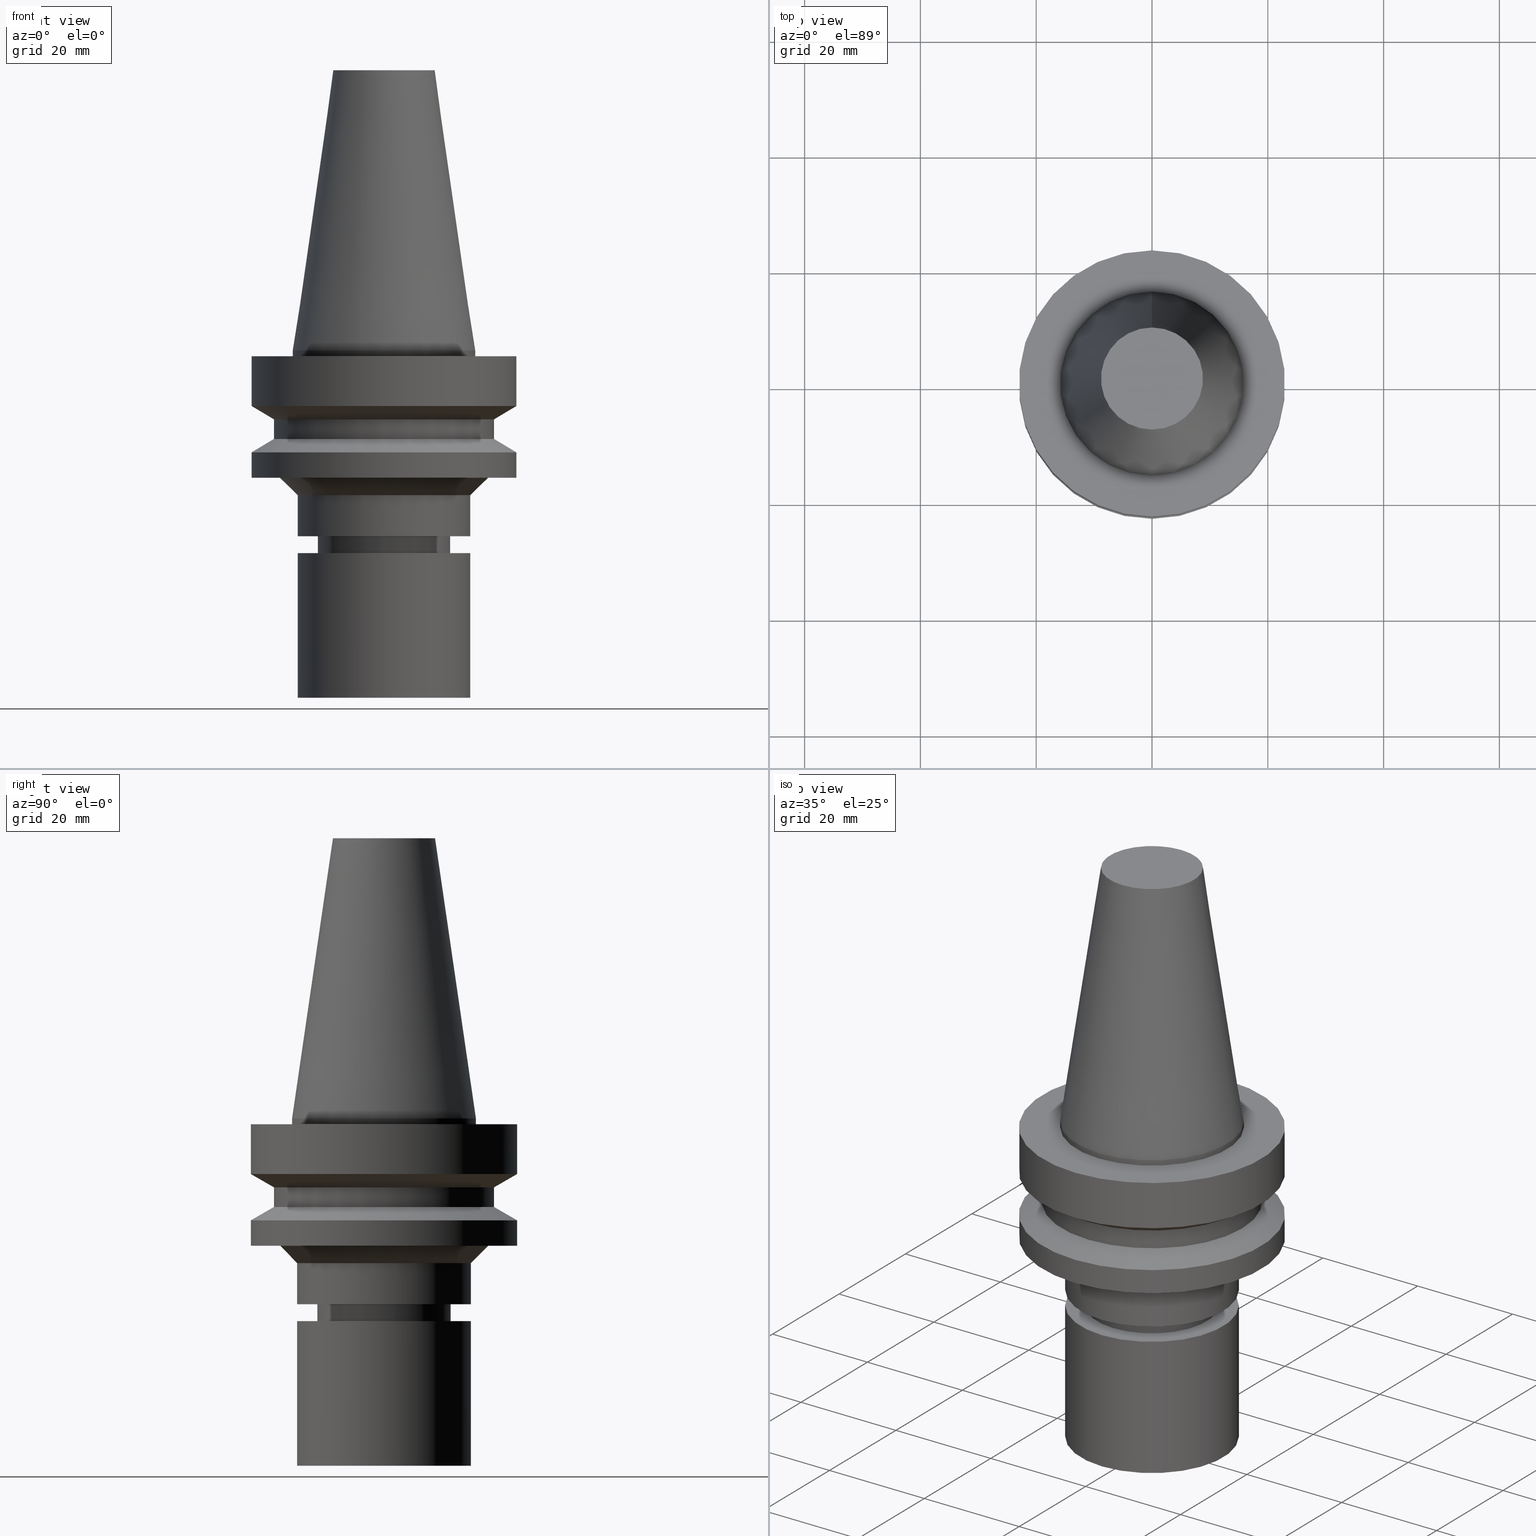
[diagram: canonical four-view strip — front | top / right | iso, engineering-drawing reading convention]
A machine part, canonical four-view strip (front | top / right | iso — engineering-drawing reading convention). The complete STEP part file that produces these views, byte-faithful:
ISO-10303-21;
HEADER;
FILE_DESCRIPTION((''),'1');
FILE_NAME('V:/90_\X2\53D65F9730C730FC30BF\X0\/00_\X2\6DE18DEF30C730FC30BF\X0\/ALL/BBT-BKUS\X2\FF76FF80FF9BFF78FF9E752852A05DE556F3\X0\201801/BBT30-MEGAER/BBT30-MEGAER16-60NL.stp','2018-02-02T07:05:59',(''),(''),'Spatial Interop R21 SP3','Kubotek KeyCreator 2011 V10.0.2 (22737)',' ');
FILE_SCHEMA(('automotive_design'));
ENDSEC;
DATA;
#1=MECHANICAL_DESIGN_GEOMETRIC_PRESENTATION_REPRESENTATION(' ',(#14,#15,#16,#17,#18,#19,#20,#21,#22,#23,#24,#25,#26,#27,#28,#29,#30,#31,#32,#33,#34,#35,#36,#37,#38,#39,#40,#41,#42,#43,#44,#45,#46,#47,#48,#49,#50,#51,#52,#53,#54,#55),#10);
#2=PRODUCT_DEFINITION_CONTEXT('',#56,'design');
#3=APPLICATION_PROTOCOL_DEFINITION('INTERNATIONAL STANDARD','automotive_design',1994,#56);
#4=PRODUCT_CATEGORY_RELATIONSHIP('NONE','NONE',#57,#58);
#5=SHAPE_DEFINITION_REPRESENTATION(#59,#60);
#6=PRODUCT_DEFINITION_CONTEXT('',#61,'design');
#7=APPLICATION_PROTOCOL_DEFINITION('INTERNATIONAL STANDARD','automotive_design',1994,#61);
#8=PRODUCT_CATEGORY_RELATIONSHIP('NONE','NONE',#62,#63);
#9=SHAPE_DEFINITION_REPRESENTATION(#64,#65);
#10= (GEOMETRIC_REPRESENTATION_CONTEXT(3)GLOBAL_UNCERTAINTY_ASSIGNED_CONTEXT((#68))GLOBAL_UNIT_ASSIGNED_CONTEXT((#70,#71,#72))REPRESENTATION_CONTEXT('NONE','WORKSPACE'));
#14=STYLED_ITEM('',(#74),#75);
#15=STYLED_ITEM('',(#76,#77),#78);
#16=STYLED_ITEM('',(#79,#80),#81);
#17=STYLED_ITEM('',(#82),#83);
#18=STYLED_ITEM('',(#84),#85);
#19=STYLED_ITEM('',(#86),#87);
#20=STYLED_ITEM('',(#88),#89);
#21=STYLED_ITEM('',(#90),#91);
#22=STYLED_ITEM('',(#92),#93);
#23=STYLED_ITEM('',(#94,#95),#96);
#24=STYLED_ITEM('',(#97,#98),#99);
#25=STYLED_ITEM('',(#100,#101),#102);
#26=STYLED_ITEM('',(#103),#104);
#27=STYLED_ITEM('',(#105),#106);
#28=STYLED_ITEM('',(#107),#108);
#29=STYLED_ITEM('',(#109,#110),#111);
#30=STYLED_ITEM('',(#112),#113);
#31=STYLED_ITEM('',(#114,#115),#116);
#32=STYLED_ITEM('',(#117,#118),#119);
#33=STYLED_ITEM('',(#120,#121),#122);
#34=STYLED_ITEM('',(#123,#124),#125);
#35=STYLED_ITEM('',(#126,#127),#128);
#36=STYLED_ITEM('',(#129),#130);
#37=STYLED_ITEM('',(#131,#132),#133);
#38=STYLED_ITEM('',(#134,#135),#136);
#39=STYLED_ITEM('',(#137,#138),#139);
#40=STYLED_ITEM('',(#140,#141),#142);
#41=STYLED_ITEM('',(#143),#144);
#42=STYLED_ITEM('',(#145,#146),#147);
#43=STYLED_ITEM('',(#148,#149),#150);
#44=STYLED_ITEM('',(#151,#152),#153);
#45=STYLED_ITEM('',(#154,#155),#156);
#46=STYLED_ITEM('',(#157,#158),#159);
#47=STYLED_ITEM('',(#160),#161);
#48=STYLED_ITEM('',(#162,#163),#164);
#49=STYLED_ITEM('',(#165,#166),#167);
#50=STYLED_ITEM('',(#168),#169);
#51=STYLED_ITEM('',(#170),#171);
#52=STYLED_ITEM('',(#172),#173);
#53=STYLED_ITEM('',(#174),#175);
#54=STYLED_ITEM('',(#176,#177),#178);
#55=STYLED_ITEM('',(#179),#180);
#56=APPLICATION_CONTEXT(' ');
#57=PRODUCT_CATEGORY('part','NONE');
#58=PRODUCT_RELATED_PRODUCT_CATEGORY('detail',' ',(#181));
#59=PRODUCT_DEFINITION_SHAPE('NONE','NONE',#182);
#60=ADVANCED_BREP_SHAPE_REPRESENTATION('Unnamed[1]',(#136,#183),#10);
#61=APPLICATION_CONTEXT(' ');
#62=PRODUCT_CATEGORY('part','NONE');
#63=PRODUCT_RELATED_PRODUCT_CATEGORY('detail',' ',(#184));
#64=PRODUCT_DEFINITION_SHAPE('NONE','NONE',#185);
#65=ADVANCED_BREP_SHAPE_REPRESENTATION('Unnamed[1]',(#96,#186),#10);
#68=UNCERTAINTY_MEASURE_WITH_UNIT(LENGTH_MEASURE(1.0E-006),#70,'','');
#70= (CONVERSION_BASED_UNIT('MILLIMETRE',#189)LENGTH_UNIT()NAMED_UNIT(#192));
#71= (NAMED_UNIT(#194)PLANE_ANGLE_UNIT()SI_UNIT($,.RADIAN.));
#72= (NAMED_UNIT(#194)SOLID_ANGLE_UNIT()SI_UNIT($,.STERADIAN.));
#74=PRESENTATION_STYLE_ASSIGNMENT((#200));
#75=EDGE_CURVE('Unnamed[1]',#201,#201,#202,.T.);
#76=PRESENTATION_STYLE_ASSIGNMENT((#203));
#77=PRESENTATION_STYLE_ASSIGNMENT((#204));
#78=ADVANCED_FACE('Unnamed[1]',(#205),#206,.T.);
#79=PRESENTATION_STYLE_ASSIGNMENT((#207));
#80=PRESENTATION_STYLE_ASSIGNMENT((#208));
#81=ADVANCED_FACE('Unnamed[1]',(#209,#210),#211,.T.);
#82=PRESENTATION_STYLE_ASSIGNMENT((#212));
#83=EDGE_CURVE('Unnamed[1]',#213,#213,#214,.T.);
#84=PRESENTATION_STYLE_ASSIGNMENT((#215));
#85=EDGE_CURVE('Unnamed[1]',#216,#216,#217,.T.);
#86=PRESENTATION_STYLE_ASSIGNMENT((#218));
#87=EDGE_CURVE('Unnamed[1]',#219,#219,#220,.T.);
#88=PRESENTATION_STYLE_ASSIGNMENT((#221));
#89=EDGE_CURVE('Unnamed[1]',#222,#222,#223,.T.);
#90=PRESENTATION_STYLE_ASSIGNMENT((#224));
#91=EDGE_CURVE('Unnamed[1]',#225,#225,#226,.T.);
#92=PRESENTATION_STYLE_ASSIGNMENT((#227));
#93=EDGE_CURVE('Unnamed[1]',#228,#228,#229,.T.);
#94=PRESENTATION_STYLE_ASSIGNMENT((#230));
#95=PRESENTATION_STYLE_ASSIGNMENT((#231));
#96=MANIFOLD_SOLID_BREP('Unnamed[1]',#232);
#97=PRESENTATION_STYLE_ASSIGNMENT((#233));
#98=PRESENTATION_STYLE_ASSIGNMENT((#234));
#99=ADVANCED_FACE('Unnamed[1]',(#235,#236),#237,.T.);
#100=PRESENTATION_STYLE_ASSIGNMENT((#238));
#101=PRESENTATION_STYLE_ASSIGNMENT((#239));
#102=ADVANCED_FACE('Unnamed[1]',(#240),#241,.T.);
#103=PRESENTATION_STYLE_ASSIGNMENT((#242));
#104=EDGE_CURVE('Unnamed[1]',#243,#243,#244,.T.);
#105=PRESENTATION_STYLE_ASSIGNMENT((#245));
#106=EDGE_CURVE('Unnamed[1]',#246,#246,#247,.T.);
#107=PRESENTATION_STYLE_ASSIGNMENT((#248));
#108=EDGE_CURVE('Unnamed[1]',#249,#249,#250,.T.);
#109=PRESENTATION_STYLE_ASSIGNMENT((#251));
#110=PRESENTATION_STYLE_ASSIGNMENT((#252));
#111=ADVANCED_FACE('Unnamed[1]',(#253,#254),#255,.T.);
#112=PRESENTATION_STYLE_ASSIGNMENT((#256));
#113=EDGE_CURVE('Unnamed[1]',#257,#257,#258,.T.);
#114=PRESENTATION_STYLE_ASSIGNMENT((#259));
#115=PRESENTATION_STYLE_ASSIGNMENT((#260));
#116=ADVANCED_FACE('Unnamed[1]',(#261,#262),#263,.T.);
#117=PRESENTATION_STYLE_ASSIGNMENT((#264));
#118=PRESENTATION_STYLE_ASSIGNMENT((#265));
#119=ADVANCED_FACE('Unnamed[1]',(#266),#267,.T.);
#120=PRESENTATION_STYLE_ASSIGNMENT((#268));
#121=PRESENTATION_STYLE_ASSIGNMENT((#269));
#122=ADVANCED_FACE('Unnamed[1]',(#270),#271,.T.);
#123=PRESENTATION_STYLE_ASSIGNMENT((#272));
#124=PRESENTATION_STYLE_ASSIGNMENT((#273));
#125=ADVANCED_FACE('Unnamed[1]',(#274,#275),#276,.T.);
#126=PRESENTATION_STYLE_ASSIGNMENT((#277));
#127=PRESENTATION_STYLE_ASSIGNMENT((#278));
#128=ADVANCED_FACE('Unnamed[1]',(#279,#280),#281,.T.);
#129=PRESENTATION_STYLE_ASSIGNMENT((#282));
#130=EDGE_CURVE('Unnamed[1]',#283,#283,#284,.T.);
#131=PRESENTATION_STYLE_ASSIGNMENT((#285));
#132=PRESENTATION_STYLE_ASSIGNMENT((#286));
#133=ADVANCED_FACE('Unnamed[1]',(#287,#288),#289,.T.);
#134=PRESENTATION_STYLE_ASSIGNMENT((#290));
#135=PRESENTATION_STYLE_ASSIGNMENT((#291));
#136=MANIFOLD_SOLID_BREP('Unnamed[1]',#292);
#137=PRESENTATION_STYLE_ASSIGNMENT((#293));
#138=PRESENTATION_STYLE_ASSIGNMENT((#294));
#139=ADVANCED_FACE('Unnamed[1]',(#295,#296),#297,.T.);
#140=PRESENTATION_STYLE_ASSIGNMENT((#298));
#141=PRESENTATION_STYLE_ASSIGNMENT((#299));
#142=ADVANCED_FACE('Unnamed[1]',(#300,#301),#302,.T.);
#143=PRESENTATION_STYLE_ASSIGNMENT((#303));
#144=EDGE_CURVE('Unnamed[1]',#304,#304,#305,.T.);
#145=PRESENTATION_STYLE_ASSIGNMENT((#306));
#146=PRESENTATION_STYLE_ASSIGNMENT((#307));
#147=ADVANCED_FACE('Unnamed[1]',(#308,#309),#310,.T.);
#148=PRESENTATION_STYLE_ASSIGNMENT((#311));
#149=PRESENTATION_STYLE_ASSIGNMENT((#312));
#150=ADVANCED_FACE('Unnamed[1]',(#313,#314),#315,.T.);
#151=PRESENTATION_STYLE_ASSIGNMENT((#316));
#152=PRESENTATION_STYLE_ASSIGNMENT((#317));
#153=ADVANCED_FACE('Unnamed[1]',(#318,#319),#320,.T.);
#154=PRESENTATION_STYLE_ASSIGNMENT((#321));
#155=PRESENTATION_STYLE_ASSIGNMENT((#322));
#156=ADVANCED_FACE('Unnamed[1]',(#323,#324),#325,.T.);
#157=PRESENTATION_STYLE_ASSIGNMENT((#326));
#158=PRESENTATION_STYLE_ASSIGNMENT((#327));
#159=ADVANCED_FACE('Unnamed[1]',(#328,#329),#330,.T.);
#160=PRESENTATION_STYLE_ASSIGNMENT((#331));
#161=EDGE_CURVE('Unnamed[1]',#332,#332,#333,.T.);
#162=PRESENTATION_STYLE_ASSIGNMENT((#334));
#163=PRESENTATION_STYLE_ASSIGNMENT((#335));
#164=ADVANCED_FACE('Unnamed[1]',(#336,#337),#338,.T.);
#165=PRESENTATION_STYLE_ASSIGNMENT((#339));
#166=PRESENTATION_STYLE_ASSIGNMENT((#340));
#167=ADVANCED_FACE('Unnamed[1]',(#341,#342),#343,.T.);
#168=PRESENTATION_STYLE_ASSIGNMENT((#344));
#169=EDGE_CURVE('Unnamed[1]',#345,#345,#346,.T.);
#170=PRESENTATION_STYLE_ASSIGNMENT((#347));
#171=EDGE_CURVE('Unnamed[1]',#348,#348,#349,.T.);
#172=PRESENTATION_STYLE_ASSIGNMENT((#350));
#173=EDGE_CURVE('Unnamed[1]',#351,#351,#352,.T.);
#174=PRESENTATION_STYLE_ASSIGNMENT((#353));
#175=EDGE_CURVE('Unnamed[1]',#354,#354,#355,.T.);
#176=PRESENTATION_STYLE_ASSIGNMENT((#356));
#177=PRESENTATION_STYLE_ASSIGNMENT((#357));
#178=ADVANCED_FACE('Unnamed[1]',(#358,#359),#360,.T.);
#179=PRESENTATION_STYLE_ASSIGNMENT((#361));
#180=EDGE_CURVE('Unnamed[1]',#362,#362,#363,.T.);
#181=PRODUCT('Unnamed[1]','Unnamed[1]','PART-Unnamed[1]-DESC',(#364));
#182=PRODUCT_DEFINITION('NONE','NONE',#365,#2);
#183=AXIS2_PLACEMENT_3D('',#366,#367,#368);
#184=PRODUCT('Unnamed[1]','Unnamed[1]','PART-Unnamed[1]-DESC',(#369));
#185=PRODUCT_DEFINITION('NONE','NONE',#370,#6);
#186=AXIS2_PLACEMENT_3D('',#371,#372,#373);
#189=LENGTH_MEASURE_WITH_UNIT(LENGTH_MEASURE(1.0),#374);
#192=DIMENSIONAL_EXPONENTS(1.0,0.0,0.0,0.0,0.0,0.0,0.0);
#194=DIMENSIONAL_EXPONENTS(0.0,0.0,0.0,0.0,0.0,0.0,0.0);
#200=CURVE_STYLE('',#375,POSITIVE_LENGTH_MEASURE(1000.0),#376);
#201=VERTEX_POINT('',#377);
#202=CIRCLE('',#378,15.0000000000002);
#203=SURFACE_STYLE_USAGE(.BOTH.,#379);
#204=CURVE_STYLE('',#380,POSITIVE_LENGTH_MEASURE(1000.0),#381);
#205=FACE_OUTER_BOUND('',#382,.T.);
#206=PLANE('',#383);
#207=SURFACE_STYLE_USAGE(.BOTH.,#384);
#208=CURVE_STYLE('',#385,POSITIVE_LENGTH_MEASURE(1000.0),#386);
#209=FACE_BOUND('',#387,.T.);
#210=FACE_BOUND('',#388,.T.);
#211=CONICAL_SURFACE('',#389,12.3457500009933,0.144815870013618);
#212=CURVE_STYLE('',#390,POSITIVE_LENGTH_MEASURE(1000.0),#391);
#213=VERTEX_POINT('',#392);
#214=CIRCLE('',#393,15.0);
#215=CURVE_STYLE('',#394,POSITIVE_LENGTH_MEASURE(1000.0),#395);
#216=VERTEX_POINT('',#396);
#217=CIRCLE('',#397,15.875);
#218=CURVE_STYLE('',#398,POSITIVE_LENGTH_MEASURE(1000.0),#399);
#219=VERTEX_POINT('',#400);
#220=CIRCLE('',#401,19.0);
#221=CURVE_STYLE('',#402,POSITIVE_LENGTH_MEASURE(1000.0),#403);
#222=VERTEX_POINT('',#404);
#223=CIRCLE('',#405,19.0);
#224=CURVE_STYLE('',#406,POSITIVE_LENGTH_MEASURE(1000.0),#407);
#225=VERTEX_POINT('',#408);
#226=CIRCLE('',#409,15.0000000000001);
#227=CURVE_STYLE('',#410,POSITIVE_LENGTH_MEASURE(1000.0),#411);
#228=VERTEX_POINT('',#412);
#229=CIRCLE('',#413,9.89999999999962);
#230=SURFACE_STYLE_USAGE(.BOTH.,#414);
#231=CURVE_STYLE('',#415,POSITIVE_LENGTH_MEASURE(1000.0),#416);
#232=CLOSED_SHELL('',(#78,#119,#139));
#233=SURFACE_STYLE_USAGE(.BOTH.,#417);
#234=CURVE_STYLE('',#418,POSITIVE_LENGTH_MEASURE(1000.0),#419);
#235=FACE_BOUND('',#420,.T.);
#236=FACE_OUTER_BOUND('',#421,.T.);
#237=PLANE('',#422);
#238=SURFACE_STYLE_USAGE(.BOTH.,#423);
#239=CURVE_STYLE('',#424,POSITIVE_LENGTH_MEASURE(1000.0),#425);
#240=FACE_OUTER_BOUND('',#426,.T.);
#241=PLANE('',#427);
#242=CURVE_STYLE('',#428,POSITIVE_LENGTH_MEASURE(1000.0),#429);
#243=VERTEX_POINT('',#430);
#244=CIRCLE('',#431,23.0);
#245=CURVE_STYLE('',#432,POSITIVE_LENGTH_MEASURE(1000.0),#433);
#246=VERTEX_POINT('',#434);
#247=CIRCLE('',#435,23.0);
#248=CURVE_STYLE('',#436,POSITIVE_LENGTH_MEASURE(1000.0),#437);
#249=VERTEX_POINT('',#438);
#250=CIRCLE('',#439,23.0);
#251=SURFACE_STYLE_USAGE(.BOTH.,#440);
#252=CURVE_STYLE('',#441,POSITIVE_LENGTH_MEASURE(1000.0),#442);
#253=FACE_BOUND('',#443,.T.);
#254=FACE_BOUND('',#444,.T.);
#255=CONICAL_SURFACE('',#445,16.5000000000002,0.785398163397443);
#256=CURVE_STYLE('',#446,POSITIVE_LENGTH_MEASURE(1000.0),#447);
#257=VERTEX_POINT('',#448);
#258=CIRCLE('',#449,10.9999999999999);
#259=SURFACE_STYLE_USAGE(.BOTH.,#450);
#260=CURVE_STYLE('',#451,POSITIVE_LENGTH_MEASURE(1000.0),#452);
#261=FACE_BOUND('',#453,.T.);
#262=FACE_BOUND('',#454,.T.);
#263=CYLINDRICAL_SURFACE('',#455,15.0000000000002);
#264=SURFACE_STYLE_USAGE(.BOTH.,#456);
#265=CURVE_STYLE('',#457,POSITIVE_LENGTH_MEASURE(1000.0),#458);
#266=FACE_OUTER_BOUND('',#459,.T.);
#267=PLANE('',#460);
#268=SURFACE_STYLE_USAGE(.BOTH.,#461);
#269=CURVE_STYLE('',#462,POSITIVE_LENGTH_MEASURE(1000.0),#463);
#270=FACE_OUTER_BOUND('',#464,.T.);
#271=PLANE('',#465);
#272=SURFACE_STYLE_USAGE(.BOTH.,#466);
#273=CURVE_STYLE('',#467,POSITIVE_LENGTH_MEASURE(1000.0),#468);
#274=FACE_OUTER_BOUND('',#469,.T.);
#275=FACE_BOUND('',#470,.T.);
#276=PLANE('',#471);
#277=SURFACE_STYLE_USAGE(.BOTH.,#472);
#278=CURVE_STYLE('',#473,POSITIVE_LENGTH_MEASURE(1000.0),#474);
#279=FACE_BOUND('',#475,.T.);
#280=FACE_BOUND('',#476,.T.);
#281=CONICAL_SURFACE('',#477,21.0,1.04719755058881);
#282=CURVE_STYLE('',#478,POSITIVE_LENGTH_MEASURE(1000.0),#479);
#283=VERTEX_POINT('',#480);
#284=CIRCLE('',#481,15.875);
#285=SURFACE_STYLE_USAGE(.BOTH.,#482);
#286=CURVE_STYLE('',#483,POSITIVE_LENGTH_MEASURE(1000.0),#484);
#287=FACE_BOUND('',#485,.T.);
#288=FACE_BOUND('',#486,.T.);
#289=CYLINDRICAL_SURFACE('',#487,15.875);
#290=SURFACE_STYLE_USAGE(.BOTH.,#488);
#291=CURVE_STYLE('',#489,POSITIVE_LENGTH_MEASURE(1000.0),#490);
#292=CLOSED_SHELL('',(#122,#81,#133,#125,#167,#128,#147,#156,#150,#99,#111,#116,#164,#153,#178,#159,#142,#102));
#293=SURFACE_STYLE_USAGE(.BOTH.,#491);
#294=CURVE_STYLE('',#492,POSITIVE_LENGTH_MEASURE(1000.0),#493);
#295=FACE_BOUND('',#494,.T.);
#296=FACE_BOUND('',#495,.T.);
#297=CYLINDRICAL_SURFACE('',#496,15.0);
#298=SURFACE_STYLE_USAGE(.BOTH.,#497);
#299=CURVE_STYLE('',#498,POSITIVE_LENGTH_MEASURE(1000.0),#499);
#300=FACE_BOUND('',#500,.T.);
#301=FACE_BOUND('',#501,.T.);
#302=CONICAL_SURFACE('',#502,10.4499999999999,0.523598775598229);
#303=CURVE_STYLE('',#503,POSITIVE_LENGTH_MEASURE(1000.0),#504);
#304=VERTEX_POINT('',#505);
#305=CIRCLE('',#506,18.0000000000002);
#306=SURFACE_STYLE_USAGE(.BOTH.,#507);
#307=CURVE_STYLE('',#508,POSITIVE_LENGTH_MEASURE(1000.0),#509);
#308=FACE_BOUND('',#510,.T.);
#309=FACE_BOUND('',#511,.T.);
#310=CYLINDRICAL_SURFACE('',#512,19.0);
#311=SURFACE_STYLE_USAGE(.BOTH.,#513);
#312=CURVE_STYLE('',#514,POSITIVE_LENGTH_MEASURE(1000.0),#515);
#313=FACE_BOUND('',#516,.T.);
#314=FACE_BOUND('',#517,.T.);
#315=CYLINDRICAL_SURFACE('',#518,23.0);
#316=SURFACE_STYLE_USAGE(.BOTH.,#519);
#317=CURVE_STYLE('',#520,POSITIVE_LENGTH_MEASURE(1000.0),#521);
#318=FACE_BOUND('',#522,.T.);
#319=FACE_BOUND('',#523,.T.);
#320=CYLINDRICAL_SURFACE('',#524,11.4999999999964);
#321=SURFACE_STYLE_USAGE(.BOTH.,#525);
#322=CURVE_STYLE('',#526,POSITIVE_LENGTH_MEASURE(1000.0),#527);
#323=FACE_BOUND('',#528,.T.);
#324=FACE_BOUND('',#529,.T.);
#325=CONICAL_SURFACE('',#530,21.0,1.04719755058882);
#326=SURFACE_STYLE_USAGE(.BOTH.,#531);
#327=CURVE_STYLE('',#532,POSITIVE_LENGTH_MEASURE(1000.0),#533);
#328=FACE_BOUND('',#534,.T.);
#329=FACE_BOUND('',#535,.T.);
#330=CYLINDRICAL_SURFACE('',#536,11.0000000000001);
#331=CURVE_STYLE('',#537,POSITIVE_LENGTH_MEASURE(1000.0),#538);
#332=VERTEX_POINT('',#539);
#333=CIRCLE('',#540,23.0);
#334=SURFACE_STYLE_USAGE(.BOTH.,#541);
#335=CURVE_STYLE('',#542,POSITIVE_LENGTH_MEASURE(1000.0),#543);
#336=FACE_BOUND('',#544,.T.);
#337=FACE_OUTER_BOUND('',#545,.T.);
#338=PLANE('',#546);
#339=SURFACE_STYLE_USAGE(.BOTH.,#547);
#340=CURVE_STYLE('',#548,POSITIVE_LENGTH_MEASURE(1000.0),#549);
#341=FACE_BOUND('',#550,.T.);
#342=FACE_BOUND('',#551,.T.);
#343=CYLINDRICAL_SURFACE('',#552,23.0);
#344=CURVE_STYLE('',#553,POSITIVE_LENGTH_MEASURE(1000.0),#554);
#345=VERTEX_POINT('',#555);
#346=CIRCLE('',#556,8.81650000198669);
#347=CURVE_STYLE('',#557,POSITIVE_LENGTH_MEASURE(1000.0),#558);
#348=VERTEX_POINT('',#559);
#349=CIRCLE('',#560,15.0000000000002);
#350=CURVE_STYLE('',#561,POSITIVE_LENGTH_MEASURE(1000.0),#562);
#351=VERTEX_POINT('',#563);
#352=CIRCLE('',#564,11.4999999999907);
#353=CURVE_STYLE('',#565,POSITIVE_LENGTH_MEASURE(1000.0),#566);
#354=VERTEX_POINT('',#567);
#355=CIRCLE('',#568,11.5000000000021);
#356=SURFACE_STYLE_USAGE(.BOTH.,#569);
#357=CURVE_STYLE('',#570,POSITIVE_LENGTH_MEASURE(1000.0),#571);
#358=FACE_BOUND('',#572,.T.);
#359=FACE_BOUND('',#573,.T.);
#360=CONICAL_SURFACE('',#574,11.250000000001,1.04719755118907);
#361=CURVE_STYLE('',#575,POSITIVE_LENGTH_MEASURE(1000.0),#576);
#362=VERTEX_POINT('',#577);
#363=CIRCLE('',#578,11.0000000000003);
#364=PRODUCT_CONTEXT('',#56,'mechanical');
#365=PRODUCT_DEFINITION_FORMATION_WITH_SPECIFIED_SOURCE(' ','NONE',#181,.NOT_KNOWN.);
#366=CARTESIAN_POINT('',(0.0,0.0,0.0));
#367=DIRECTION('',(0.0,0.0,1.0));
#368=DIRECTION('',(1.0,0.0,0.0));
#369=PRODUCT_CONTEXT('',#61,'mechanical');
#370=PRODUCT_DEFINITION_FORMATION_WITH_SPECIFIED_SOURCE(' ','NONE',#184,.NOT_KNOWN.);
#371=CARTESIAN_POINT('',(0.0,0.0,0.0));
#372=DIRECTION('',(0.0,0.0,1.0));
#373=DIRECTION('',(1.0,0.0,0.0));
#374= (NAMED_UNIT(#192)LENGTH_UNIT()SI_UNIT(.MILLI.,.METRE.));
#375=DRAUGHTING_PRE_DEFINED_CURVE_FONT('continuous');
#376=COLOUR_RGB('',0.0,1.0,0.0);
#377=CARTESIAN_POINT('',(1.96555811263146E-015,15.0000000000002,-32.0999999999994));
#378=AXIS2_PLACEMENT_3D('',#580,#581,#582);
#379=SURFACE_SIDE_STYLE('',(#583));
#380=DRAUGHTING_PRE_DEFINED_CURVE_FONT('continuous');
#381=COLOUR_RGB('',0.0,1.0,0.0);
#382=EDGE_LOOP('',(#584));
#383=AXIS2_PLACEMENT_3D('',#585,#586,#587);
#384=SURFACE_SIDE_STYLE('',(#588));
#385=DRAUGHTING_PRE_DEFINED_CURVE_FONT('continuous');
#386=COLOUR_RGB('',0.0,1.0,0.0);
#387=EDGE_LOOP('',(#589));
#388=EDGE_LOOP('',(#590));
#389=AXIS2_PLACEMENT_3D('',#591,#592,#593);
#390=DRAUGHTING_PRE_DEFINED_CURVE_FONT('continuous');
#391=COLOUR_RGB('',0.0,1.0,0.0);
#392=CARTESIAN_POINT('',(3.67394039744206E-015,15.0,-60.0));
#393=AXIS2_PLACEMENT_3D('',#594,#595,#596);
#394=DRAUGHTING_PRE_DEFINED_CURVE_FONT('continuous');
#395=COLOUR_RGB('',0.0,1.0,0.0);
#396=CARTESIAN_POINT('',(6.12323399573675E-017,15.875,-0.999999999999998));
#397=AXIS2_PLACEMENT_3D('',#597,#598,#599);
#398=DRAUGHTING_PRE_DEFINED_CURVE_FONT('continuous');
#399=COLOUR_RGB('',0.0,1.0,0.0);
#400=CARTESIAN_POINT('',(9.36279151221199E-016,19.0,-15.29059892));
#401=AXIS2_PLACEMENT_3D('',#600,#601,#602);
#402=DRAUGHTING_PRE_DEFINED_CURVE_FONT('continuous');
#403=COLOUR_RGB('',0.0,1.0,0.0);
#404=CARTESIAN_POINT('',(7.29240495619202E-016,19.0,-11.90940108));
#405=AXIS2_PLACEMENT_3D('',#603,#604,#605);
#406=DRAUGHTING_PRE_DEFINED_CURVE_FONT('continuous');
#407=COLOUR_RGB('',0.0,1.0,0.0);
#408=CARTESIAN_POINT('',(2.14313189850787E-015,15.0000000000001,-35.0));
#409=AXIS2_PLACEMENT_3D('',#606,#607,#608);
#410=DRAUGHTING_PRE_DEFINED_CURVE_FONT('continuous');
#411=COLOUR_RGB('',0.0,1.0,0.0);
#412=CARTESIAN_POINT('',(3.13509580581717E-015,9.89999999999963,-51.1999999999991));
#413=AXIS2_PLACEMENT_3D('',#609,#610,#611);
#414=SURFACE_SIDE_STYLE('',(#612));
#415=DRAUGHTING_PRE_DEFINED_CURVE_FONT('continuous');
#416=COLOUR_RGB('',0.0,1.0,0.0);
#417=SURFACE_SIDE_STYLE('',(#613));
#418=DRAUGHTING_PRE_DEFINED_CURVE_FONT('continuous');
#419=COLOUR_RGB('',0.0,1.0,0.0);
#420=EDGE_LOOP('',(#614));
#421=EDGE_LOOP('',(#615));
#422=AXIS2_PLACEMENT_3D('',#616,#617,#618);
#423=SURFACE_SIDE_STYLE('',(#619));
#424=DRAUGHTING_PRE_DEFINED_CURVE_FONT('continuous');
#425=COLOUR_RGB('',0.0,1.0,0.0);
#426=EDGE_LOOP('',(#620));
#427=AXIS2_PLACEMENT_3D('',#621,#622,#623);
#428=DRAUGHTING_PRE_DEFINED_CURVE_FONT('continuous');
#429=COLOUR_RGB('',0.0,1.0,0.0);
#430=CARTESIAN_POINT('',(6.12323399573674E-017,23.0,-0.999999999999997));
#431=AXIS2_PLACEMENT_3D('',#624,#625,#626);
#432=DRAUGHTING_PRE_DEFINED_CURVE_FONT('continuous');
#433=COLOUR_RGB('',0.0,1.0,0.0);
#434=CARTESIAN_POINT('',(5.87830463590729E-016,23.0,-9.59999999999999));
#435=AXIS2_PLACEMENT_3D('',#627,#628,#629);
#436=DRAUGHTING_PRE_DEFINED_CURVE_FONT('continuous');
#437=COLOUR_RGB('',0.0,1.0,0.0);
#438=CARTESIAN_POINT('',(1.07768918324967E-015,23.0,-17.6));
#439=AXIS2_PLACEMENT_3D('',#630,#631,#632);
#440=SURFACE_SIDE_STYLE('',(#633));
#441=DRAUGHTING_PRE_DEFINED_CURVE_FONT('continuous');
#442=COLOUR_RGB('',0.0,1.0,0.0);
#443=EDGE_LOOP('',(#634));
#444=EDGE_LOOP('',(#635));
#445=AXIS2_PLACEMENT_3D('',#636,#637,#638);
#446=DRAUGHTING_PRE_DEFINED_CURVE_FONT('continuous');
#447=COLOUR_RGB('',0.0,1.0,0.0);
#448=CARTESIAN_POINT('',(2.33907538637135E-015,10.9999999999999,-38.1999999999984));
#449=AXIS2_PLACEMENT_3D('',#639,#640,#641);
#450=SURFACE_SIDE_STYLE('',(#642));
#451=DRAUGHTING_PRE_DEFINED_CURVE_FONT('continuous');
#452=COLOUR_RGB('',0.0,1.0,0.0);
#453=EDGE_LOOP('',(#643));
#454=EDGE_LOOP('',(#644));
#455=AXIS2_PLACEMENT_3D('',#645,#646,#647);
#456=SURFACE_SIDE_STYLE('',(#648));
#457=DRAUGHTING_PRE_DEFINED_CURVE_FONT('continuous');
#458=COLOUR_RGB('',0.0,1.0,0.0);
#459=EDGE_LOOP('',(#649));
#460=AXIS2_PLACEMENT_3D('',#650,#651,#652);
#461=SURFACE_SIDE_STYLE('',(#653));
#462=DRAUGHTING_PRE_DEFINED_CURVE_FONT('continuous');
#463=COLOUR_RGB('',0.0,1.0,0.0);
#464=EDGE_LOOP('',(#654));
#465=AXIS2_PLACEMENT_3D('',#655,#656,#657);
#466=SURFACE_SIDE_STYLE('',(#658));
#467=DRAUGHTING_PRE_DEFINED_CURVE_FONT('continuous');
#468=COLOUR_RGB('',0.0,1.0,0.0);
#469=EDGE_LOOP('',(#659));
#470=EDGE_LOOP('',(#660));
#471=AXIS2_PLACEMENT_3D('',#661,#662,#663);
#472=SURFACE_SIDE_STYLE('',(#664));
#473=DRAUGHTING_PRE_DEFINED_CURVE_FONT('continuous');
#474=COLOUR_RGB('',0.0,1.0,0.0);
#475=EDGE_LOOP('',(#665));
#476=EDGE_LOOP('',(#666));
#477=AXIS2_PLACEMENT_3D('',#667,#668,#669);
#478=DRAUGHTING_PRE_DEFINED_CURVE_FONT('continuous');
#479=COLOUR_RGB('',0.0,1.0,0.0);
#480=CARTESIAN_POINT('',(-1.95674482349743E-031,15.875,1.94412679364642E-015));
#481=AXIS2_PLACEMENT_3D('',#670,#671,#672);
#482=SURFACE_SIDE_STYLE('',(#673));
#483=DRAUGHTING_PRE_DEFINED_CURVE_FONT('continuous');
#484=COLOUR_RGB('',0.0,1.0,0.0);
#485=EDGE_LOOP('',(#674));
#486=EDGE_LOOP('',(#675));
#487=AXIS2_PLACEMENT_3D('',#676,#677,#678);
#488=SURFACE_SIDE_STYLE('',(#679));
#489=DRAUGHTING_PRE_DEFINED_CURVE_FONT('continuous');
#490=COLOUR_RGB('',0.0,1.0,0.0);
#491=SURFACE_SIDE_STYLE('',(#680));
#492=DRAUGHTING_PRE_DEFINED_CURVE_FONT('continuous');
#493=COLOUR_RGB('',0.0,1.0,0.0);
#494=EDGE_LOOP('',(#681));
#495=EDGE_LOOP('',(#682));
#496=AXIS2_PLACEMENT_3D('',#683,#684,#685);
#497=SURFACE_SIDE_STYLE('',(#686));
#498=DRAUGHTING_PRE_DEFINED_CURVE_FONT('continuous');
#499=COLOUR_RGB('',0.0,1.0,0.0);
#500=EDGE_LOOP('',(#687));
#501=EDGE_LOOP('',(#688));
#502=AXIS2_PLACEMENT_3D('',#689,#690,#691);
#503=DRAUGHTING_PRE_DEFINED_CURVE_FONT('continuous');
#504=COLOUR_RGB('',0.0,1.0,0.0);
#505=CARTESIAN_POINT('',(1.34711147906209E-015,18.0000000000002,-22.0));
#506=AXIS2_PLACEMENT_3D('',#692,#693,#694);
#507=SURFACE_SIDE_STYLE('',(#695));
#508=DRAUGHTING_PRE_DEFINED_CURVE_FONT('continuous');
#509=COLOUR_RGB('',0.0,1.0,0.0);
#510=EDGE_LOOP('',(#696));
#511=EDGE_LOOP('',(#697));
#512=AXIS2_PLACEMENT_3D('',#698,#699,#700);
#513=SURFACE_SIDE_STYLE('',(#701));
#514=DRAUGHTING_PRE_DEFINED_CURVE_FONT('continuous');
#515=COLOUR_RGB('',0.0,1.0,0.0);
#516=EDGE_LOOP('',(#702));
#517=EDGE_LOOP('',(#703));
#518=AXIS2_PLACEMENT_3D('',#704,#705,#706);
#519=SURFACE_SIDE_STYLE('',(#707));
#520=DRAUGHTING_PRE_DEFINED_CURVE_FONT('continuous');
#521=COLOUR_RGB('',0.0,1.0,0.0);
#522=EDGE_LOOP('',(#708));
#523=EDGE_LOOP('',(#709));
#524=AXIS2_PLACEMENT_3D('',#710,#711,#712);
#525=SURFACE_SIDE_STYLE('',(#713));
#526=DRAUGHTING_PRE_DEFINED_CURVE_FONT('continuous');
#527=COLOUR_RGB('',0.0,1.0,0.0);
#528=EDGE_LOOP('',(#714));
#529=EDGE_LOOP('',(#715));
#530=AXIS2_PLACEMENT_3D('',#716,#717,#718);
#531=SURFACE_SIDE_STYLE('',(#719));
#532=DRAUGHTING_PRE_DEFINED_CURVE_FONT('continuous');
#533=COLOUR_RGB('',0.0,1.0,0.0);
#534=EDGE_LOOP('',(#720));
#535=EDGE_LOOP('',(#721));
#536=AXIS2_PLACEMENT_3D('',#722,#723,#724);
#537=DRAUGHTING_PRE_DEFINED_CURVE_FONT('continuous');
#538=COLOUR_RGB('',0.0,1.0,0.0);
#539=CARTESIAN_POINT('',(1.34711147906209E-015,23.0,-22.0));
#540=AXIS2_PLACEMENT_3D('',#725,#726,#727);
#541=SURFACE_SIDE_STYLE('',(#728));
#542=DRAUGHTING_PRE_DEFINED_CURVE_FONT('continuous');
#543=COLOUR_RGB('',0.0,1.0,0.0);
#544=EDGE_LOOP('',(#729));
#545=EDGE_LOOP('',(#730));
#546=AXIS2_PLACEMENT_3D('',#731,#732,#733);
#547=SURFACE_SIDE_STYLE('',(#734));
#548=DRAUGHTING_PRE_DEFINED_CURVE_FONT('continuous');
#549=COLOUR_RGB('',0.0,1.0,0.0);
#550=EDGE_LOOP('',(#735));
#551=EDGE_LOOP('',(#736));
#552=AXIS2_PLACEMENT_3D('',#737,#738,#739);
#553=DRAUGHTING_PRE_DEFINED_CURVE_FONT('continuous');
#554=COLOUR_RGB('',0.0,1.0,0.0);
#555=CARTESIAN_POINT('',(-2.96364525393659E-015,8.81650000198669,48.4));
#556=AXIS2_PLACEMENT_3D('',#740,#741,#742);
#557=DRAUGHTING_PRE_DEFINED_CURVE_FONT('continuous');
#558=COLOUR_RGB('',0.0,1.0,0.0);
#559=CARTESIAN_POINT('',(1.53080849893419E-015,15.0000000000002,-25.0));
#560=AXIS2_PLACEMENT_3D('',#743,#744,#745);
#561=DRAUGHTING_PRE_DEFINED_CURVE_FONT('continuous');
#562=COLOUR_RGB('',0.0,1.0,0.0);
#563=CARTESIAN_POINT('',(1.96555811263151E-015,11.4999999999907,-32.1000000000001));
#564=AXIS2_PLACEMENT_3D('',#746,#747,#748);
#565=DRAUGHTING_PRE_DEFINED_CURVE_FONT('continuous');
#566=COLOUR_RGB('',0.0,1.0,0.0);
#567=CARTESIAN_POINT('',(2.32139913239222E-015,11.5000000000021,-37.9113248653974));
#568=AXIS2_PLACEMENT_3D('',#749,#750,#751);
#569=SURFACE_SIDE_STYLE('',(#752));
#570=DRAUGHTING_PRE_DEFINED_CURVE_FONT('continuous');
#571=COLOUR_RGB('',0.0,1.0,0.0);
#572=EDGE_LOOP('',(#753));
#573=EDGE_LOOP('',(#754));
#574=AXIS2_PLACEMENT_3D('',#755,#756,#757);
#575=DRAUGHTING_PRE_DEFINED_CURVE_FONT('continuous');
#576=COLOUR_RGB('',0.0,1.0,0.0);
#577=CARTESIAN_POINT('',(3.01843252955734E-015,11.0000000000003,-49.294744111672));
#578=AXIS2_PLACEMENT_3D('',#758,#759,#760);
#580=CARTESIAN_POINT('',(1.96555811263146E-015,3.93111622526292E-015,-32.0999999999994));
#581=DIRECTION('',(6.12323399573677E-017,1.22464679914735E-016,-1.0));
#582=DIRECTION('',(-1.23259516440783E-032,1.0,1.22464679914735E-016));
#583=SURFACE_STYLE_FILL_AREA(#761);
#584=ORIENTED_EDGE('',*,*,#83,.T.);
#585=CARTESIAN_POINT('',(3.67394039744206E-015,7.50000000000001,-60.0));
#586=DIRECTION('',(6.12323399573677E-017,1.22464679914735E-016,-1.0));
#587=DIRECTION('',(-1.23259516440783E-032,1.0,1.22464679914735E-016));
#588=SURFACE_STYLE_FILL_AREA(#762);
#589=ORIENTED_EDGE('',*,*,#130,.F.);
#590=ORIENTED_EDGE('',*,*,#169,.T.);
#591=CARTESIAN_POINT('',(-1.4818226269683E-015,-2.96364525393659E-015,24.2));
#592=DIRECTION('',(6.12323399573677E-017,1.22464679914735E-016,-1.0));
#593=DIRECTION('',(-1.23259516440783E-032,1.0,1.22464679914735E-016));
#594=CARTESIAN_POINT('',(3.67394039744206E-015,7.34788079488412E-015,-60.0));
#595=DIRECTION('',(6.12323399573677E-017,1.22464679914735E-016,-1.0));
#596=DIRECTION('',(-1.23259516440783E-032,1.0,1.22464679914735E-016));
#597=CARTESIAN_POINT('',(6.12323399573677E-017,1.22464679914735E-016,-1.0));
#598=DIRECTION('',(6.12323399573677E-017,1.22464679914735E-016,-1.0));
#599=DIRECTION('',(-1.23259516440783E-032,1.0,1.22464679914735E-016));
#600=CARTESIAN_POINT('',(9.36279151221199E-016,1.8725583024424E-015,-15.29059892));
#601=DIRECTION('',(6.12323399573677E-017,1.22464679914735E-016,-1.0));
#602=DIRECTION('',(-1.23259516440783E-032,1.0,1.22464679914735E-016));
#603=CARTESIAN_POINT('',(7.29240495619202E-016,1.4584809912384E-015,-11.90940108));
#604=DIRECTION('',(6.12323399573677E-017,1.22464679914735E-016,-1.0));
#605=DIRECTION('',(-1.23259516440783E-032,1.0,1.22464679914735E-016));
#606=CARTESIAN_POINT('',(2.14313189850787E-015,4.28626379701574E-015,-35.0));
#607=DIRECTION('',(6.12323399573677E-017,1.22464679914735E-016,-1.0));
#608=DIRECTION('',(-1.23259516440783E-032,1.0,1.22464679914735E-016));
#609=CARTESIAN_POINT('',(3.13509580581717E-015,6.27019161163434E-015,-51.1999999999991));
#610=DIRECTION('',(6.12323399573677E-017,1.22464679914735E-016,-1.0));
#611=DIRECTION('',(-1.23259516440783E-032,1.0,1.22464679914735E-016));
#612=SURFACE_STYLE_FILL_AREA(#763);
#613=SURFACE_STYLE_FILL_AREA(#764);
#614=ORIENTED_EDGE('',*,*,#144,.F.);
#615=ORIENTED_EDGE('',*,*,#161,.T.);
#616=CARTESIAN_POINT('',(1.34711147906209E-015,20.5000000000001,-22.0));
#617=DIRECTION('',(6.12323399573677E-017,1.22464679914735E-016,-1.0));
#618=DIRECTION('',(-1.23259516440783E-032,1.0,1.22464679914735E-016));
#619=SURFACE_STYLE_FILL_AREA(#765);
#620=ORIENTED_EDGE('',*,*,#93,.T.);
#621=CARTESIAN_POINT('',(3.13509580581719E-015,4.94999999999982,-51.1999999999995));
#622=DIRECTION('',(6.12323399573677E-017,8.12248173474849E-014,-1.0));
#623=DIRECTION('',(-4.97841278152706E-030,1.0,8.12248173474849E-014));
#624=CARTESIAN_POINT('',(6.12323399573677E-017,1.22464679914735E-016,-1.0));
#625=DIRECTION('',(6.12323399573677E-017,1.22464679914735E-016,-1.0));
#626=DIRECTION('',(-1.23259516440783E-032,1.0,1.22464679914735E-016));
#627=CARTESIAN_POINT('',(5.87830463590729E-016,1.17566092718146E-015,-9.59999999999999));
#628=DIRECTION('',(6.12323399573677E-017,1.22464679914735E-016,-1.0));
#629=DIRECTION('',(-1.23259516440783E-032,1.0,1.22464679914735E-016));
#630=CARTESIAN_POINT('',(1.07768918324967E-015,2.15537836649934E-015,-17.6));
#631=DIRECTION('',(6.12323399573677E-017,1.22464679914735E-016,-1.0));
#632=DIRECTION('',(-1.23259516440783E-032,1.0,1.22464679914735E-016));
#633=SURFACE_STYLE_FILL_AREA(#766);
#634=ORIENTED_EDGE('',*,*,#171,.F.);
#635=ORIENTED_EDGE('',*,*,#144,.T.);
#636=CARTESIAN_POINT('',(1.43895998899814E-015,2.87791997799628E-015,-23.5));
#637=DIRECTION('',(-6.12323399573677E-017,-1.22464679914735E-016,1.0));
#638=DIRECTION('',(-1.23259516440783E-032,1.0,1.22464679914735E-016));
#639=CARTESIAN_POINT('',(2.33907538637135E-015,4.6781507727427E-015,-38.1999999999984));
#640=DIRECTION('',(6.12323399573676E-017,1.22464679914735E-016,-1.0));
#641=DIRECTION('',(-1.23259516440783E-032,1.0,1.22464679914735E-016));
#642=SURFACE_STYLE_FILL_AREA(#767);
#643=ORIENTED_EDGE('',*,*,#75,.F.);
#644=ORIENTED_EDGE('',*,*,#171,.T.);
#645=CARTESIAN_POINT('',(1.74818330578283E-015,3.49636661156565E-015,-28.5499999999997));
#646=DIRECTION('',(6.12323399573677E-017,1.22464679914735E-016,-1.0));
#647=DIRECTION('',(-1.23259516440783E-032,1.0,1.22464679914735E-016));
#648=SURFACE_STYLE_FILL_AREA(#768);
#649=ORIENTED_EDGE('',*,*,#91,.F.);
#650=CARTESIAN_POINT('',(2.14313189850787E-015,7.50000000000004,-35.0));
#651=DIRECTION('',(-6.12323399573677E-017,-1.22464679914735E-016,1.0));
#652=DIRECTION('',(1.23259516440783E-032,-1.0,-1.22464679914735E-016));
#653=SURFACE_STYLE_FILL_AREA(#769);
#654=ORIENTED_EDGE('',*,*,#169,.F.);
#655=CARTESIAN_POINT('',(-2.96364525393659E-015,4.40825000099334,48.4));
#656=DIRECTION('',(-6.12323399573677E-017,-1.22464679914735E-016,1.0));
#657=DIRECTION('',(1.23259516440783E-032,-1.0,-1.22464679914735E-016));
#658=SURFACE_STYLE_FILL_AREA(#770);
#659=ORIENTED_EDGE('',*,*,#104,.F.);
#660=ORIENTED_EDGE('',*,*,#85,.T.);
#661=CARTESIAN_POINT('',(6.12323399573674E-017,19.4375,-0.999999999999998));
#662=DIRECTION('',(-6.12323399573677E-017,-1.22464679914735E-016,1.0));
#663=DIRECTION('',(1.23259516440783E-032,-1.0,-1.22464679914735E-016));
#664=SURFACE_STYLE_FILL_AREA(#771);
#665=ORIENTED_EDGE('',*,*,#89,.F.);
#666=ORIENTED_EDGE('',*,*,#106,.T.);
#667=CARTESIAN_POINT('',(6.58535479604966E-016,1.31707095920993E-015,-10.75470054));
#668=DIRECTION('',(-6.12323399573677E-017,-1.22464679914735E-016,1.0));
#669=DIRECTION('',(-1.23259516440783E-032,1.0,1.22464679914735E-016));
#670=CARTESIAN_POINT('',(0.0,0.0,0.0));
#671=DIRECTION('',(6.12323399573677E-017,1.22464679914735E-016,-1.0));
#672=DIRECTION('',(-1.23259516440783E-032,1.0,1.22464679914735E-016));
#673=SURFACE_STYLE_FILL_AREA(#772);
#674=ORIENTED_EDGE('',*,*,#85,.F.);
#675=ORIENTED_EDGE('',*,*,#130,.T.);
#676=CARTESIAN_POINT('',(3.06161699786838E-017,6.12323399573676E-017,-0.5));
#677=DIRECTION('',(6.12323399573677E-017,1.22464679914735E-016,-1.0));
#678=DIRECTION('',(-1.23259516440783E-032,1.0,1.22464679914735E-016));
#679=SURFACE_STYLE_FILL_AREA(#773);
#680=SURFACE_STYLE_FILL_AREA(#774);
#681=ORIENTED_EDGE('',*,*,#83,.F.);
#682=ORIENTED_EDGE('',*,*,#91,.T.);
#683=CARTESIAN_POINT('',(2.90853614797497E-015,5.81707229594993E-015,-47.5));
#684=DIRECTION('',(6.12323399573677E-017,1.22464679914735E-016,-1.0));
#685=DIRECTION('',(-1.23259516440783E-032,1.0,1.22464679914735E-016));
#686=SURFACE_STYLE_FILL_AREA(#775);
#687=ORIENTED_EDGE('',*,*,#93,.F.);
#688=ORIENTED_EDGE('',*,*,#180,.T.);
#689=CARTESIAN_POINT('',(3.07676416768726E-015,6.15352833537451E-015,-50.2473720558355));
#690=DIRECTION('',(-6.12323399573677E-017,-1.22464679914735E-016,1.0));
#691=DIRECTION('',(-1.23259516440783E-032,1.0,1.22464679914735E-016));
#692=CARTESIAN_POINT('',(1.34711147906209E-015,2.69422295812418E-015,-22.0));
#693=DIRECTION('',(6.12323399573677E-017,1.22464679914735E-016,-1.0));
#694=DIRECTION('',(-1.23259516440783E-032,1.0,1.22464679914735E-016));
#695=SURFACE_STYLE_FILL_AREA(#776);
#696=ORIENTED_EDGE('',*,*,#87,.F.);
#697=ORIENTED_EDGE('',*,*,#89,.T.);
#698=CARTESIAN_POINT('',(8.32759823420201E-016,1.6655196468404E-015,-13.6));
#699=DIRECTION('',(6.12323399573677E-017,1.22464679914735E-016,-1.0));
#700=DIRECTION('',(-1.23259516440783E-032,1.0,1.22464679914735E-016));
#701=SURFACE_STYLE_FILL_AREA(#777);
#702=ORIENTED_EDGE('',*,*,#161,.F.);
#703=ORIENTED_EDGE('',*,*,#108,.T.);
#704=CARTESIAN_POINT('',(1.21240033115588E-015,2.42480066231176E-015,-19.8));
#705=DIRECTION('',(6.12323399573677E-017,1.22464679914735E-016,-1.0));
#706=DIRECTION('',(-1.23259516440783E-032,1.0,1.22464679914735E-016));
#707=SURFACE_STYLE_FILL_AREA(#778);
#708=ORIENTED_EDGE('',*,*,#175,.F.);
#709=ORIENTED_EDGE('',*,*,#173,.T.);
#710=CARTESIAN_POINT('',(2.14347862251186E-015,4.28695724502372E-015,-35.0056624326987));
#711=DIRECTION('',(6.12323399573676E-017,1.22464679914735E-016,-1.0));
#712=DIRECTION('',(-1.23259516440783E-032,1.0,1.22464679914735E-016));
#713=SURFACE_STYLE_FILL_AREA(#779);
#714=ORIENTED_EDGE('',*,*,#108,.F.);
#715=ORIENTED_EDGE('',*,*,#87,.T.);
#716=CARTESIAN_POINT('',(1.00698416723543E-015,2.01396833447087E-015,-16.44529946));
#717=DIRECTION('',(6.12323399573677E-017,1.22464679914735E-016,-1.0));
#718=DIRECTION('',(-1.23259516440783E-032,1.0,1.22464679914735E-016));
#719=SURFACE_STYLE_FILL_AREA(#780);
#720=ORIENTED_EDGE('',*,*,#180,.F.);
#721=ORIENTED_EDGE('',*,*,#113,.T.);
#722=CARTESIAN_POINT('',(2.67875395796435E-015,5.35750791592869E-015,-43.7473720558352));
#723=DIRECTION('',(6.12323399573677E-017,1.22464679914735E-016,-1.0));
#724=DIRECTION('',(-1.23259516440783E-032,1.0,1.22464679914735E-016));
#725=CARTESIAN_POINT('',(1.34711147906209E-015,2.69422295812418E-015,-22.0));
#726=DIRECTION('',(6.12323399573677E-017,1.22464679914735E-016,-1.0));
#727=DIRECTION('',(-1.23259516440783E-032,1.0,1.22464679914735E-016));
#728=SURFACE_STYLE_FILL_AREA(#781);
#729=ORIENTED_EDGE('',*,*,#173,.F.);
#730=ORIENTED_EDGE('',*,*,#75,.T.);
#731=CARTESIAN_POINT('',(1.96555811263148E-015,13.2499999999955,-32.0999999999997));
#732=DIRECTION('',(6.12323399573677E-017,2.051647969987E-013,-1.0));
#733=DIRECTION('',(-1.25675477498395E-029,1.0,2.051647969987E-013));
#734=SURFACE_STYLE_FILL_AREA(#782);
#735=ORIENTED_EDGE('',*,*,#106,.F.);
#736=ORIENTED_EDGE('',*,*,#104,.T.);
#737=CARTESIAN_POINT('',(3.24531401774048E-016,6.49062803548097E-016,-5.3));
#738=DIRECTION('',(6.12323399573677E-017,1.22464679914735E-016,-1.0));
#739=DIRECTION('',(-1.23259516440783E-032,1.0,1.22464679914735E-016));
#740=CARTESIAN_POINT('',(-2.96364525393659E-015,-5.92729050787319E-015,48.4));
#741=DIRECTION('',(6.12323399573677E-017,1.22464679914735E-016,-1.0));
#742=DIRECTION('',(-1.23259516440783E-032,1.0,1.22464679914735E-016));
#743=CARTESIAN_POINT('',(1.53080849893419E-015,3.06161699786838E-015,-25.0));
#744=DIRECTION('',(6.12323399573677E-017,1.22464679914735E-016,-1.0));
#745=DIRECTION('',(-1.23259516440783E-032,1.0,1.22464679914735E-016));
#746=CARTESIAN_POINT('',(1.96555811263151E-015,3.93111622526301E-015,-32.1000000000001));
#747=DIRECTION('',(6.12323399573677E-017,1.22464679914735E-016,-1.0));
#748=DIRECTION('',(-1.23259516440783E-032,1.0,1.22464679914735E-016));
#749=CARTESIAN_POINT('',(2.32139913239222E-015,4.64279826478443E-015,-37.9113248653974));
#750=DIRECTION('',(6.12323399573676E-017,1.22464679914735E-016,-1.0));
#751=DIRECTION('',(-1.23259516440783E-032,1.0,1.22464679914735E-016));
#752=SURFACE_STYLE_FILL_AREA(#783);
#753=ORIENTED_EDGE('',*,*,#113,.F.);
#754=ORIENTED_EDGE('',*,*,#175,.T.);
#755=CARTESIAN_POINT('',(2.33023725938178E-015,4.66047451876357E-015,-38.0556624326979));
#756=DIRECTION('',(-6.12323399573677E-017,-1.22464679914735E-016,1.0));
#757=DIRECTION('',(-1.23259516440783E-032,1.0,1.22464679914735E-016));
#758=CARTESIAN_POINT('',(3.01843252955734E-015,6.03686505911469E-015,-49.294744111672));
#759=DIRECTION('',(6.12323399573676E-017,1.22464679914735E-016,-1.0));
#760=DIRECTION('',(-1.23259516440783E-032,1.0,1.22464679914735E-016));
#761=FILL_AREA_STYLE('',(#784));
#762=FILL_AREA_STYLE('',(#785));
#763=FILL_AREA_STYLE('',(#786));
#764=FILL_AREA_STYLE('',(#787));
#765=FILL_AREA_STYLE('',(#788));
#766=FILL_AREA_STYLE('',(#789));
#767=FILL_AREA_STYLE('',(#790));
#768=FILL_AREA_STYLE('',(#791));
#769=FILL_AREA_STYLE('',(#792));
#770=FILL_AREA_STYLE('',(#793));
#771=FILL_AREA_STYLE('',(#794));
#772=FILL_AREA_STYLE('',(#795));
#773=FILL_AREA_STYLE('',(#796));
#774=FILL_AREA_STYLE('',(#797));
#775=FILL_AREA_STYLE('',(#798));
#776=FILL_AREA_STYLE('',(#799));
#777=FILL_AREA_STYLE('',(#800));
#778=FILL_AREA_STYLE('',(#801));
#779=FILL_AREA_STYLE('',(#802));
#780=FILL_AREA_STYLE('',(#803));
#781=FILL_AREA_STYLE('',(#804));
#782=FILL_AREA_STYLE('',(#805));
#783=FILL_AREA_STYLE('',(#806));
#784=FILL_AREA_STYLE_COLOUR('',#807);
#785=FILL_AREA_STYLE_COLOUR('',#808);
#786=FILL_AREA_STYLE_COLOUR('',#809);
#787=FILL_AREA_STYLE_COLOUR('',#810);
#788=FILL_AREA_STYLE_COLOUR('',#811);
#789=FILL_AREA_STYLE_COLOUR('',#812);
#790=FILL_AREA_STYLE_COLOUR('',#813);
#791=FILL_AREA_STYLE_COLOUR('',#814);
#792=FILL_AREA_STYLE_COLOUR('',#815);
#793=FILL_AREA_STYLE_COLOUR('',#816);
#794=FILL_AREA_STYLE_COLOUR('',#817);
#795=FILL_AREA_STYLE_COLOUR('',#818);
#796=FILL_AREA_STYLE_COLOUR('',#819);
#797=FILL_AREA_STYLE_COLOUR('',#820);
#798=FILL_AREA_STYLE_COLOUR('',#821);
#799=FILL_AREA_STYLE_COLOUR('',#822);
#800=FILL_AREA_STYLE_COLOUR('',#823);
#801=FILL_AREA_STYLE_COLOUR('',#824);
#802=FILL_AREA_STYLE_COLOUR('',#825);
#803=FILL_AREA_STYLE_COLOUR('',#826);
#804=FILL_AREA_STYLE_COLOUR('',#827);
#805=FILL_AREA_STYLE_COLOUR('',#828);
#806=FILL_AREA_STYLE_COLOUR('',#829);
#807=COLOUR_RGB('',0.0,1.0,0.0);
#808=COLOUR_RGB('',0.0,1.0,0.0);
#809=COLOUR_RGB('',0.0,1.0,0.0);
#810=COLOUR_RGB('',0.0,1.0,0.0);
#811=COLOUR_RGB('',0.0,1.0,0.0);
#812=COLOUR_RGB('',0.0,1.0,0.0);
#813=COLOUR_RGB('',0.0,1.0,0.0);
#814=COLOUR_RGB('',0.0,1.0,0.0);
#815=COLOUR_RGB('',0.0,1.0,0.0);
#816=COLOUR_RGB('',0.0,1.0,0.0);
#817=COLOUR_RGB('',0.0,1.0,0.0);
#818=COLOUR_RGB('',0.0,1.0,0.0);
#819=COLOUR_RGB('',0.0,1.0,0.0);
#820=COLOUR_RGB('',0.0,1.0,0.0);
#821=COLOUR_RGB('',0.0,1.0,0.0);
#822=COLOUR_RGB('',0.0,1.0,0.0);
#823=COLOUR_RGB('',0.0,1.0,0.0);
#824=COLOUR_RGB('',0.0,1.0,0.0);
#825=COLOUR_RGB('',0.0,1.0,0.0);
#826=COLOUR_RGB('',0.0,1.0,0.0);
#827=COLOUR_RGB('',0.0,1.0,0.0);
#828=COLOUR_RGB('',0.0,1.0,0.0);
#829=COLOUR_RGB('',0.0,1.0,0.0);
ENDSEC;
END-ISO-10303-21;
